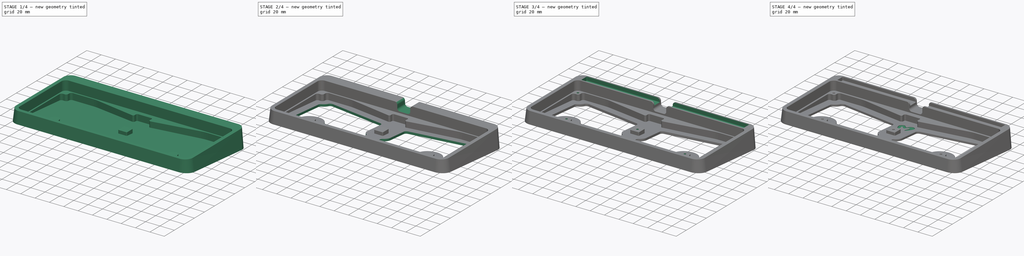
[diagram: build sequence overview — one tinted view per stage of 4, left to right]
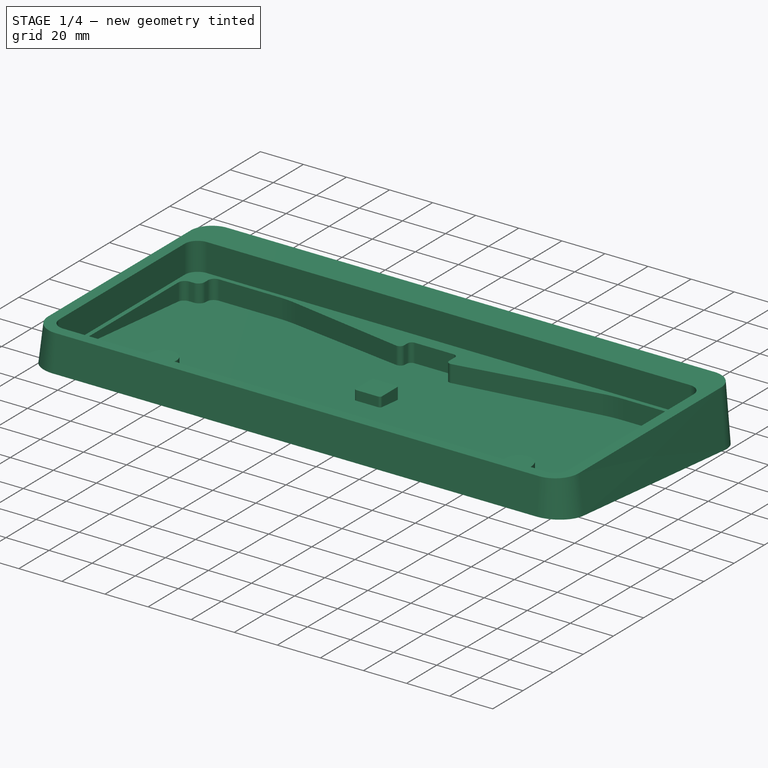
[diagram: stage 1 of 4 — iso view after this stage's code; geometry added in this stage tinted green]
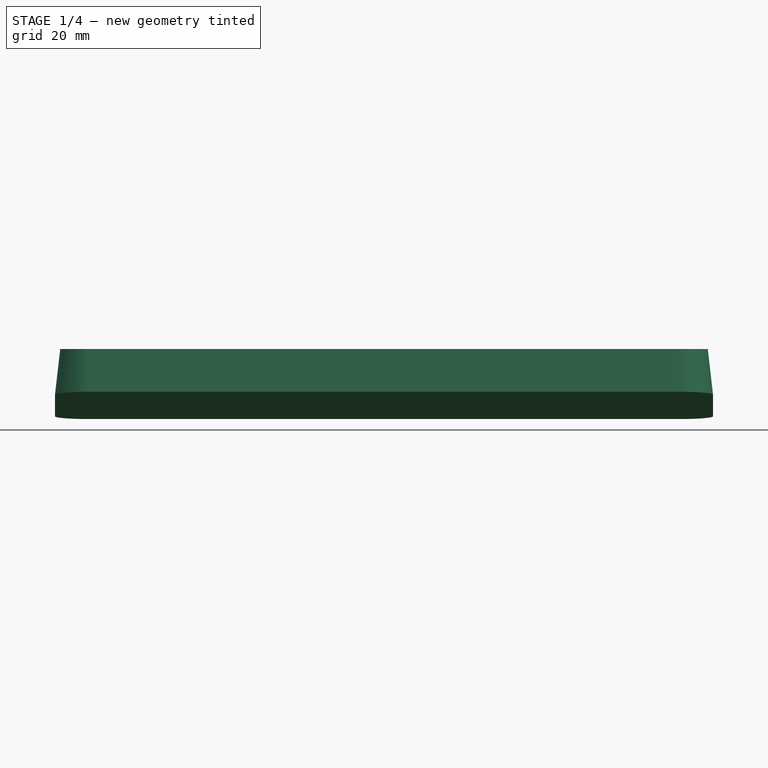
[diagram: stage 1 of 4 — front view after this stage's code; geometry added in this stage tinted green]
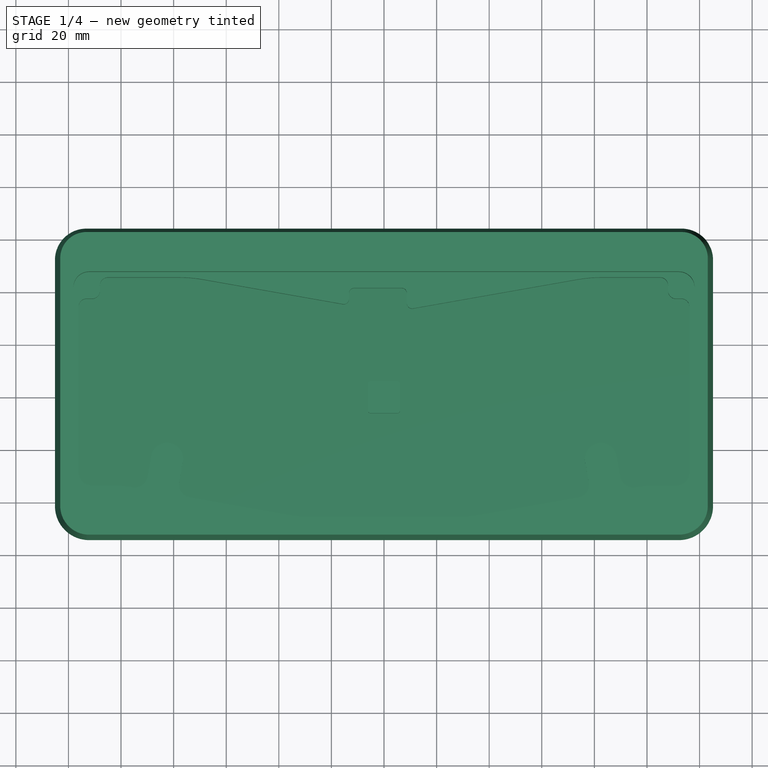
[diagram: stage 1 of 4 — top view after this stage's code; geometry added in this stage tinted green]
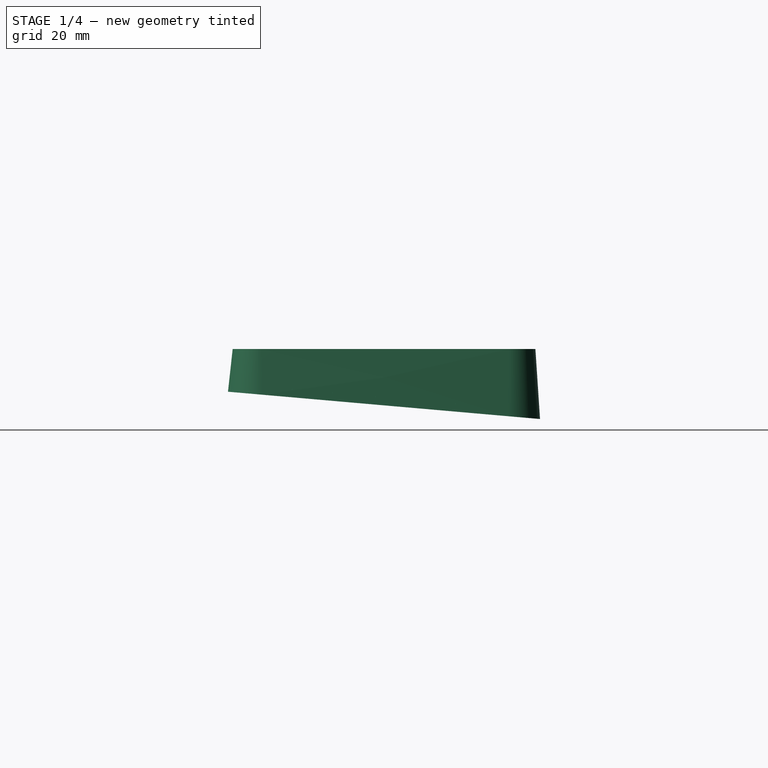
[diagram: stage 1 of 4 — right view after this stage's code; geometry added in this stage tinted green]
FCSTD DOCUMENT  (FreeCAD 0.20R)
Label: case.v2
License: All rights reserved
LicenseURL: http://en.wikipedia.org/wiki/All_rights_reserved
objects: Sketcher::SketchObject×9, PartDesign::Pocket×6, PartDesign::Fillet×3, PartDesign::AdditiveLoft×1, PartDesign::Hole×1, PartDesign::Chamfer×1, PartDesign::Body×1
note: 34 computed .brp shape members not serialized (recipe doc carries the construction recipe); baked Part::Feature solids carry a one-line shape summary decoded from their .brp

FEATURE [Sketcher::SketchObject] Sketch
  AttachmentOffset = pos=(0,0,0) rot=(-1,0,0;0.087266rad)
  FullyConstrained = false
  MapMode = 5
  Placement = pos=(0,0,0) rot=(-1,0,0;0.087266rad)
  Support = -> [XY_Plane]
  sketch-geometry (8):
    g0: LineSegment StartX=125.125 StartY=52.561 StartZ=0 EndX=125.125 EndY=-41.561 EndZ=0
    g1: ArcOfCircle CenterX=113.125 CenterY=52.561 CenterZ=0 NormalX=0 NormalY=0 NormalZ=1 AngleXU=0 Radius=12 StartAngle=0 EndAngle=1.5708
    g2: LineSegment StartX=-113.125 StartY=64.561 StartZ=0 EndX=113.125 EndY=64.561 EndZ=0
    g3: LineSegment StartX=-112.125 StartY=-54.561 StartZ=0 EndX=112.125 EndY=-54.561 EndZ=0
    g4: ArcOfCircle CenterX=112.125 CenterY=-41.561 CenterZ=0 NormalX=0 NormalY=0 NormalZ=1 AngleXU=0 Radius=13 StartAngle=4.71239 EndAngle=6.28319
    g5: ArcOfCircle CenterX=-113.125 CenterY=52.561 CenterZ=0 NormalX=0 NormalY=0 NormalZ=1 AngleXU=0 Radius=12 StartAngle=1.5708 EndAngle=3.14159
    g6: ArcOfCircle CenterX=-112.125 CenterY=-41.561 CenterZ=0 NormalX=0 NormalY=0 NormalZ=1 AngleXU=0 Radius=13 StartAngle=3.14159 EndAngle=4.71239
    g7: LineSegment StartX=-125.125 StartY=52.561 StartZ=0 EndX=-125.125 EndY=-41.561 EndZ=0
  constraints (8):
    c: Coincident(g6,g7)
    c: Coincident(g5,g7)
    c: Coincident(g2,g5)
    c: Coincident(g3,g6)
    c: Coincident(g3,g4)
    c: Coincident(g1,g2)
    c: Coincident(g0,g4)
    c: Coincident(g0,g1)
FEATURE [Sketcher::SketchObject] Sketch001
  AttachmentOffset = pos=(0,0,21) rot=(0,0,1;0rad)
  FullyConstrained = false
  MapMode = 5
  Placement = pos=(0,0,21) rot=(0,0,1;0rad)
  Support = -> [XY_Plane]
  sketch-geometry (8):
    g0: LineSegment StartX=-112.125 StartY=-52.561 StartZ=0 EndX=112.125 EndY=-52.561 EndZ=0
    g1: ArcOfCircle CenterX=112.125 CenterY=-41.561 CenterZ=0 NormalX=0 NormalY=0 NormalZ=1 AngleXU=0 Radius=11 StartAngle=4.71239 EndAngle=6.28319
    g2: ArcOfCircle CenterX=-112.125 CenterY=-41.561 CenterZ=0 NormalX=0 NormalY=0 NormalZ=1 AngleXU=0 Radius=11 StartAngle=3.14159 EndAngle=4.71239
    g3: LineSegment StartX=123.125 StartY=52.561 StartZ=0 EndX=123.125 EndY=-41.561 EndZ=0
    g4: ArcOfCircle CenterX=113.125 CenterY=52.561 CenterZ=0 NormalX=0 NormalY=0 NormalZ=1 AngleXU=0 Radius=10 StartAngle=0 EndAngle=1.5708
    g5: LineSegment StartX=-123.125 StartY=52.561 StartZ=0 EndX=-123.125 EndY=-41.561 EndZ=0
    g6: LineSegment StartX=-113.125 StartY=62.561 StartZ=0 EndX=113.125 EndY=62.561 EndZ=0
    g7: ArcOfCircle CenterX=-113.125 CenterY=52.561 CenterZ=0 NormalX=0 NormalY=0 NormalZ=1 AngleXU=0 Radius=10 StartAngle=1.5708 EndAngle=3.14159
  constraints (8):
    c: Coincident(g2,g5)
    c: Coincident(g5,g7)
    c: Coincident(g6,g7)
    c: Coincident(g0,g2)
    c: Coincident(g0,g1)
    c: Coincident(g4,g6)
    c: Coincident(g1,g3)
    c: Coincident(g3,g4)
FEATURE [PartDesign::AdditiveLoft] AdditiveLoft
  Closed = false
  Profile = -> Sketch001
  Ruled = true
  Sections = -> [Sketch]
FEATURE [Sketcher::SketchObject] Sketch002
  FullyConstrained = false
  MapMode = 5
  Placement = pos=(0,0,21) rot=(0,0,1;0rad)
  Support = -> [AdditiveLoft]
  sketch-geometry (8):
    g0: LineSegment StartX=-112.125 StartY=47.561 StartZ=0 EndX=112.125 EndY=47.561 EndZ=0
    g1: LineSegment StartX=-112.125 StartY=-47.561 StartZ=0 EndX=112.125 EndY=-47.561 EndZ=0
    g2: ArcOfCircle CenterX=112.125 CenterY=-41.561 CenterZ=0 NormalX=0 NormalY=0 NormalZ=1 AngleXU=0 Radius=6 StartAngle=4.71239 EndAngle=6.28319
    g3: ArcOfCircle CenterX=-112.125 CenterY=-41.561 CenterZ=0 NormalX=0 NormalY=0 NormalZ=1 AngleXU=0 Radius=6 StartAngle=3.14159 EndAngle=4.71239
    g4: LineSegment StartX=-118.125 StartY=41.561 StartZ=0 EndX=-118.125 EndY=-41.561 EndZ=0
    g5: ArcOfCircle CenterX=-112.125 CenterY=41.561 CenterZ=0 NormalX=0 NormalY=0 NormalZ=1 AngleXU=0 Radius=6 StartAngle=1.5708 EndAngle=3.14159
    g6: ArcOfCircle CenterX=112.125 CenterY=41.561 CenterZ=0 NormalX=0 NormalY=0 NormalZ=1 AngleXU=0 Radius=6 StartAngle=0 EndAngle=1.5708
    g7: LineSegment StartX=118.125 StartY=41.561 StartZ=0 EndX=118.125 EndY=-41.561 EndZ=0
  constraints (8):
    c: Coincident(g3,g4)
    c: Coincident(g4,g5)
    c: Coincident(g1,g3)
    c: Coincident(g0,g5)
    c: Coincident(g1,g2)
    c: Coincident(g0,g6)
    c: Coincident(g2,g7)
    c: Coincident(g6,g7)
FEATURE [PartDesign::Pocket] Pocket
  BaseFeature = -> AdditiveLoft
  Direction = (0,0,-1)
  Length = 13
  Length2 = 5
  Profile = -> Sketch002
  ReferenceAxis = -> Sketch002 [N_Axis]
  Type = 0
FEATURE [Sketcher::SketchObject] Sketch003
  FullyConstrained = false
  MapMode = 5
  Placement = pos=(0,0,8) rot=(0,0,1;0rad)
  Support = -> [Pocket]
  sketch-geometry (54):
    g0: ArcOfCircle CenterX=-111.125 CenterY=-28.579 CenterZ=0 NormalX=0 NormalY=0 NormalZ=1 AngleXU=0 Radius=5 StartAngle=3.14159 EndAngle=4.71239
    g1: LineSegment StartX=-111.125 StartY=-33.579 StartZ=0 EndX=-103.958 EndY=-33.579 EndZ=0
    g2: ArcOfCircle CenterX=-27.256 CenterY=4.43899 CenterZ=0 NormalX=0 NormalY=0 NormalZ=1 AngleXU=0 Radius=50 StartAngle=4.53786 EndAngle=4.71239
    g3: ArcOfCircle CenterX=111.125 CenterY=-28.579 CenterZ=0 NormalX=0 NormalY=0 NormalZ=1 AngleXU=0 Radius=5 StartAngle=4.71239 EndAngle=6.28319
    g4: LineSegment StartX=111.125 StartY=-33.579 StartZ=0 EndX=103.958 EndY=-33.579 EndZ=0
    g5: ArcOfCircle CenterX=27.256 CenterY=4.43899 CenterZ=0 NormalX=0 NormalY=0 NormalZ=1 AngleXU=0 Radius=50 StartAngle=4.71239 EndAngle=4.88692
    g6: LineSegment StartX=-27.256 StartY=-45.561 StartZ=0 EndX=27.256 EndY=-45.561 EndZ=0
    g7: ArcOfCircle CenterX=-11.3028 CenterY=39.541 CenterZ=0 NormalX=0 NormalY=0 NormalZ=1 AngleXU=0 Radius=2 StartAngle=1.5708 EndAngle=3.14159
    g8: LineSegment StartX=-11.3028 StartY=41.541 StartZ=0 EndX=6.69716 EndY=41.541 EndZ=0
    g9: ArcOfCircle CenterX=6.69716 CenterY=39.541 CenterZ=0 NormalX=0 NormalY=0 NormalZ=1 AngleXU=0 Radius=2 StartAngle=0 EndAngle=1.5708
    g10: LineSegment StartX=8.69716 StartY=35.7139 StartZ=0 EndX=8.69716 EndY=39.541 EndZ=0
    g11: ArcOfCircle CenterX=10.6972 CenterY=35.7139 CenterZ=0 NormalX=0 NormalY=0 NormalZ=1 AngleXU=0 Radius=2 StartAngle=3.14159 EndAngle=4.88692
    g12: LineSegment StartX=-13.3028 StartY=37.3635 StartZ=0 EndX=-13.3028 EndY=39.541 EndZ=0
    g13: ArcOfCircle CenterX=-15.3028 CenterY=37.3635 CenterZ=0 NormalX=0 NormalY=0 NormalZ=1 AngleXU=0 Radius=2 StartAngle=4.53786 EndAngle=6.28319
    g14: LineSegment StartX=-69.0025 StartY=44.8014 StartZ=0 EndX=-15.6501 EndY=35.3939 EndZ=0
    g15: ArcOfCircle CenterX=-77.6849 CenterY=-4.43899 CenterZ=0 NormalX=0 NormalY=0 NormalZ=1 AngleXU=0 Radius=50 StartAngle=1.39626 EndAngle=1.5708
    g16: LineSegment StartX=11.0445 StartY=33.7443 StartZ=0 EndX=73.7525 EndY=44.8014 EndZ=0
    g17: ArcOfCircle CenterX=82.4349 CenterY=-4.43899 CenterZ=0 NormalX=0 NormalY=0 NormalZ=1 AngleXU=0 Radius=50 StartAngle=1.5708 EndAngle=1.74533
    g18: ArcOfCircle CenterX=-82.5 CenterY=-23.459 CenterZ=0 NormalX=0 NormalY=0 NormalZ=1 AngleXU=0 Radius=6.1 StartAngle=6.10865 EndAngle=9.25025
    g19: ArcOfCircle CenterX=82.5 CenterY=-23.459 CenterZ=0 NormalX=0 NormalY=0 NormalZ=1 AngleXU=0 Radius=6.1 StartAngle=0.174533 EndAngle=3.31613
    g20: ArcOfCircle CenterX=5.1 CenterY=-5.1 CenterZ=0 NormalX=0 NormalY=0 NormalZ=1 AngleXU=0 Radius=1 StartAngle=4.71239 EndAngle=6.28319
    g21: LineSegment StartX=5.1 StartY=-6.1 StartZ=0 EndX=-5.1 EndY=-6.1 EndZ=0
    g22: ArcOfCircle CenterX=-5.1 CenterY=-5.1 CenterZ=0 NormalX=0 NormalY=0 NormalZ=1 AngleXU=0 Radius=1 StartAngle=3.14159 EndAngle=4.71239
    g23: LineSegment StartX=-6.1 StartY=5.1 StartZ=0 EndX=-6.1 EndY=-5.1 EndZ=0
    g24: ArcOfCircle CenterX=-5.1 CenterY=5.1 CenterZ=0 NormalX=0 NormalY=0 NormalZ=1 AngleXU=0 Radius=1 StartAngle=1.5708 EndAngle=3.14159
    g25: LineSegment StartX=5.1 StartY=6.1 StartZ=0 EndX=-5.1 EndY=6.1 EndZ=0
    g26: LineSegment StartX=6.1 StartY=5.1 StartZ=0 EndX=6.1 EndY=-5.1 EndZ=0
    g27: ArcOfCircle CenterX=5.1 CenterY=5.1 CenterZ=0 NormalX=0 NormalY=0 NormalZ=1 AngleXU=0 Radius=1 StartAngle=0 EndAngle=1.5708
    g28: ArcOfCircle CenterX=111.025 CenterY=40.461 CenterZ=0 NormalX=0 NormalY=0 NormalZ=1 AngleXU=0 Radius=3 StartAngle=3.14159 EndAngle=4.71239
    g29: LineSegment StartX=113.125 StartY=37.461 StartZ=0 EndX=111.025 EndY=37.461 EndZ=0
    g30: LineSegment StartX=116.125 StartY=34.461 StartZ=0 EndX=116.125 EndY=-28.579 EndZ=0
    g31: ArcOfCircle CenterX=113.125 CenterY=34.461 CenterZ=0 NormalX=0 NormalY=0 NormalZ=1 AngleXU=0 Radius=3 StartAngle=0 EndAngle=1.5708
    g32: LineSegment StartX=82.4349 StartY=45.561 StartZ=0 EndX=105.025 EndY=45.561 EndZ=0
    g33: LineSegment StartX=108.025 StartY=42.561 StartZ=0 EndX=108.025 EndY=40.461 EndZ=0
    g34: ArcOfCircle CenterX=105.025 CenterY=42.561 CenterZ=0 NormalX=0 NormalY=0 NormalZ=1 AngleXU=0 Radius=3 StartAngle=0 EndAngle=1.5708
    g35: LineSegment StartX=-116.125 StartY=34.461 StartZ=0 EndX=-116.125 EndY=-28.579 EndZ=0
    g36: ArcOfCircle CenterX=-113.125 CenterY=34.461 CenterZ=0 NormalX=0 NormalY=0 NormalZ=1 AngleXU=0 Radius=3 StartAngle=1.5708 EndAngle=3.14159
    g37: LineSegment StartX=-113.125 StartY=37.461 StartZ=0 EndX=-111.025 EndY=37.461 EndZ=0
    g38: ArcOfCircle CenterX=-111.025 CenterY=40.461 CenterZ=0 NormalX=0 NormalY=0 NormalZ=1 AngleXU=0 Radius=3 StartAngle=4.71239 EndAngle=6.28319
    g39: LineSegment StartX=-108.025 StartY=42.561 StartZ=0 EndX=-108.025 EndY=40.461 EndZ=0
    g40: LineSegment StartX=-105.025 StartY=45.561 StartZ=0 EndX=-77.6849 EndY=45.561 EndZ=0
    g41: ArcOfCircle CenterX=-105.025 CenterY=42.561 CenterZ=0 NormalX=0 NormalY=0 NormalZ=1 AngleXU=0 Radius=3 StartAngle=1.5708 EndAngle=3.14159
    g42: LineSegment StartX=-73.8144 StartY=-38.1228 StartZ=0 EndX=-35.9384 EndY=-44.8014 EndZ=0
    g43: LineSegment StartX=-77.8702 StartY=-32.3306 StartZ=0 EndX=-76.4927 EndY=-24.5182 EndZ=0
    g44: ArcOfCircle CenterX=-72.9462 CenterY=-33.1988 CenterZ=0 NormalX=0 NormalY=0 NormalZ=1 AngleXU=0 Radius=5 StartAngle=2.96706 EndAngle=4.53786
    g45: LineSegment StartX=-89.8851 StartY=-30.2135 StartZ=0 EndX=-88.5073 EndY=-22.3997 EndZ=0
    g46: ArcOfCircle CenterX=-103.958 CenterY=-83.579 CenterZ=0 NormalX=0 NormalY=0 NormalZ=1 AngleXU=0 Radius=50 StartAngle=1.40367 EndAngle=1.5708
    g47: ArcOfCircle CenterX=-94.8092 CenterY=-29.3453 CenterZ=0 NormalX=0 NormalY=0 NormalZ=1 AngleXU=0 Radius=5 StartAngle=4.54526 EndAngle=6.10865
    g48: LineSegment StartX=89.8851 StartY=-30.2135 StartZ=0 EndX=88.5073 EndY=-22.3997 EndZ=0
    g49: ArcOfCircle CenterX=103.958 CenterY=-83.579 CenterZ=0 NormalX=0 NormalY=0 NormalZ=1 AngleXU=0 Radius=50 StartAngle=1.5708 EndAngle=1.73792
    g50: ArcOfCircle CenterX=94.8092 CenterY=-29.3453 CenterZ=0 NormalX=0 NormalY=0 NormalZ=1 AngleXU=0 Radius=5 StartAngle=3.31613 EndAngle=4.87951
    g51: LineSegment StartX=73.8144 StartY=-38.1228 StartZ=0 EndX=35.9384 EndY=-44.8014 EndZ=0
    g52: LineSegment StartX=77.8702 StartY=-32.3306 StartZ=0 EndX=76.4927 EndY=-24.5182 EndZ=0
    g53: ArcOfCircle CenterX=72.9462 CenterY=-33.1988 CenterZ=0 NormalX=0 NormalY=0 NormalZ=1 AngleXU=0 Radius=5 StartAngle=4.88692 EndAngle=6.45772
  constraints (54):
    c: Coincident(g0,g35)
    c: Coincident(g35,g36)
    c: Coincident(g36,g37)
    c: Coincident(g0,g1)
    c: Coincident(g37,g38)
    c: Coincident(g38,g39)
    c: Coincident(g39,g41)
    c: Coincident(g40,g41)
    c: Coincident(g1,g46)
    c: Coincident(g46,g47)
    c: Coincident(g45,g47)
    c: Coincident(g18,g45)
    c: Coincident(g43,g44)
    c: Coincident(g15,g40)
    c: Coincident(g18,g43)
    c: Coincident(g42,g44)
    c: Coincident(g14,g15)
    c: Coincident(g2,g42)
    c: Coincident(g2,g6)
    c: Coincident(g13,g14)
    c: Coincident(g12,g13)
    c: Coincident(g7,g12)
    c: Coincident(g7,g8)
    c: Coincident(g22,g23)
    c: Coincident(g23,g24)
    c: Coincident(g21,g22)
    c: Coincident(g24,g25)
    c: Coincident(g20,g21)
    c: Coincident(g25,g27)
    c: Coincident(g20,g26)
    c: Coincident(g26,g27)
    c: Coincident(g8,g9)
    c: Coincident(g10,g11)
    c: Coincident(g9,g10)
    c: Coincident(g11,g16)
    c: Coincident(g5,g6)
    c: Coincident(g5,g51)
    c: Coincident(g16,g17)
    c: Coincident(g51,g53)
    c: Coincident(g19,g52)
    c: Coincident(g52,g53)
    c: Coincident(g17,g32)
    c: Coincident(g19,g48)
    c: Coincident(g48,g50)
    c: Coincident(g49,g50)
    c: Coincident(g4,g49)
    c: Coincident(g32,g34)
    c: Coincident(g28,g33)
    c: Coincident(g33,g34)
    c: Coincident(g28,g29)
    c: Coincident(g3,g4)
    c: Coincident(g29,g31)
    c: Coincident(g3,g30)
    c: Coincident(g30,g31)
FEATURE [PartDesign::Pocket] Pocket001
  BaseFeature = -> Pocket
  Direction = (0,0,-1)
  Length = 0
  Length2 = 5
  Offset = -3
  Profile = -> Sketch003
  ReferenceAxis = -> Sketch003 [N_Axis]
  Type = 3
  UpToFace = -> Pocket [Face18]
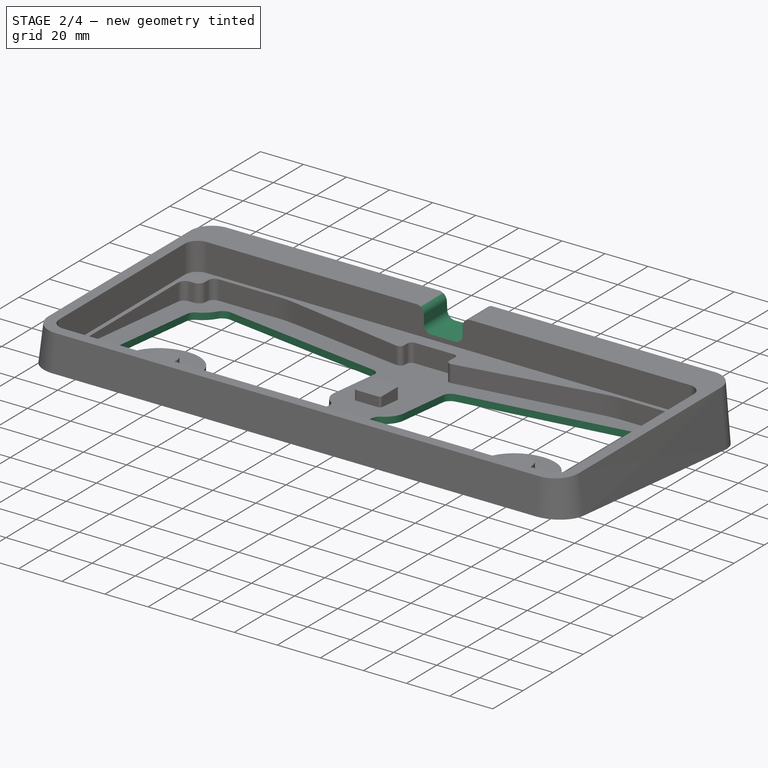
[diagram: stage 2 of 4 — iso view after this stage's code; geometry added in this stage tinted green]
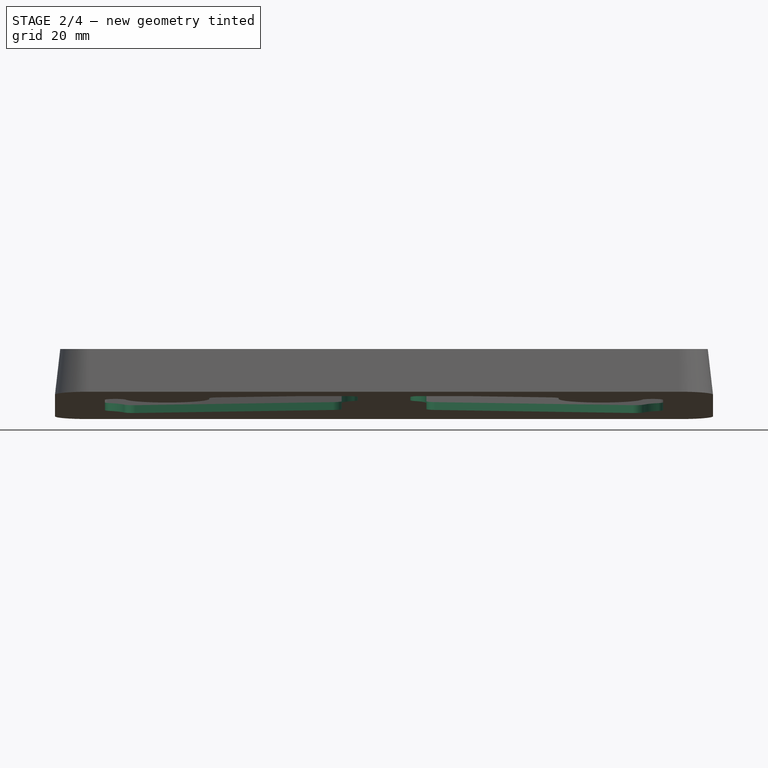
[diagram: stage 2 of 4 — front view after this stage's code; geometry added in this stage tinted green]
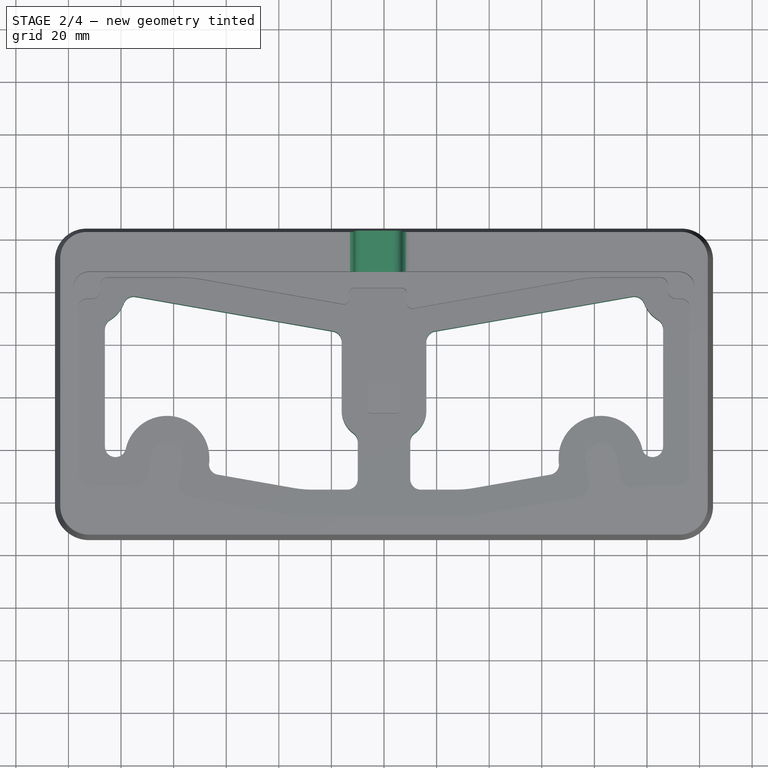
[diagram: stage 2 of 4 — top view after this stage's code; geometry added in this stage tinted green]
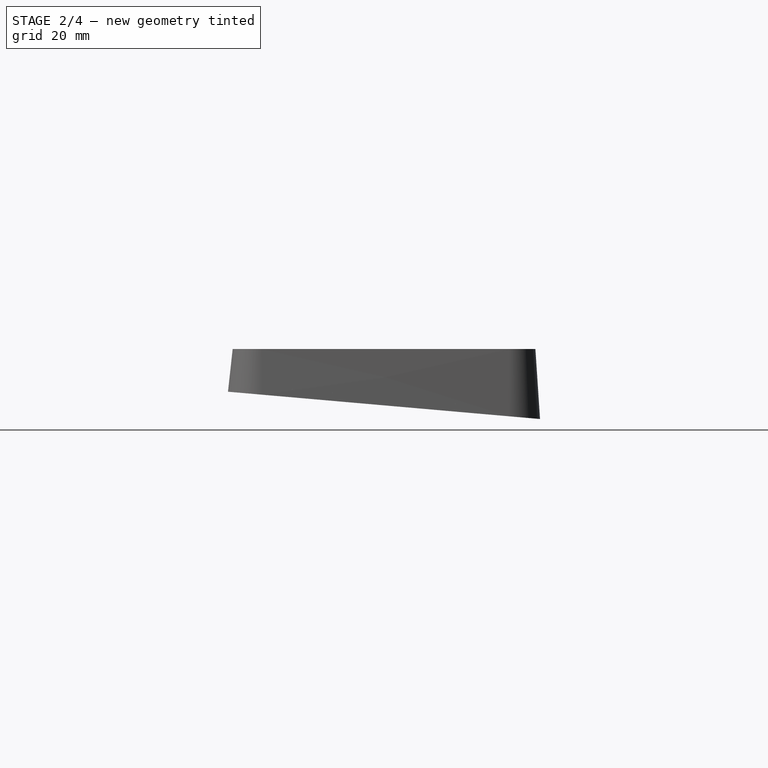
[diagram: stage 2 of 4 — right view after this stage's code; geometry added in this stage tinted green]
FEATURE [Sketcher::SketchObject] Sketch004
  FullyConstrained = false
  MapMode = 5
  Placement = pos=(0,0,21) rot=(0,0,1;0rad)
  Support = -> [AdditiveLoft]
  sketch-geometry (4):
    g0: LineSegment StartX=-11.3028 StartY=39.541 StartZ=0 EndX=6.69716 EndY=39.541 EndZ=0
    g1: LineSegment StartX=6.69716 StartY=39.541 StartZ=0 EndX=6.69716 EndY=80 EndZ=0
    g2: LineSegment StartX=-11.3028 StartY=39.541 StartZ=0 EndX=-11.3028 EndY=80 EndZ=0
    g3: LineSegment StartX=-11.3028 StartY=80 StartZ=0 EndX=6.69716 EndY=80 EndZ=0
  constraints (4):
    c: Coincident(g0,g2)
    c: Coincident(g2,g3)
    c: Coincident(g0,g1)
    c: Coincident(g1,g3)
FEATURE [PartDesign::Pocket] Pocket002
  BaseFeature = -> Pocket001
  Direction = (0,0,-1)
  Length = 0
  Length2 = 5
  Offset = -2
  Profile = -> Sketch004
  ReferenceAxis = -> Sketch004 [N_Axis]
  Type = 3
  UpToFace = -> Pocket001 [Face19]
FEATURE [PartDesign::Fillet] Fillet
  Base = -> Pocket002 [Edge5,Edge15,Edge33,Edge53]
  BaseFeature = -> Pocket002
  Radius = 3.5
  SupportTransform = false
  UseAllEdges = false
FEATURE [Sketcher::SketchObject] Sketch005
  FullyConstrained = false
  MapMode = 5
  Placement = pos=(0,0.260472,2.97721) rot=(-1,0,0;0.087266rad)
  Support = -> [Fillet]
  sketch-geometry (34):
    g0: ArcOfCircle CenterX=27.256 CenterY=4.43899 CenterZ=0 NormalX=0 NormalY=0 NormalZ=1 AngleXU=0 Radius=40 StartAngle=4.71239 EndAngle=4.88692
    g1: LineSegment StartX=63.2426 StartY=-29.8327 StartZ=0 EndX=34.202 EndY=-34.9533 EndZ=0
    g2: ArcOfCircle CenterX=62.548 CenterY=-25.8934 CenterZ=0 NormalX=0 NormalY=0 NormalZ=1 AngleXU=0 Radius=4 StartAngle=4.88692 EndAngle=6.4046
    g3: ArcOfCircle CenterX=82.5 CenterY=-23.459 CenterZ=0 NormalX=0 NormalY=0 NormalZ=1 AngleXU=0 Radius=16.1 StartAngle=0.217833 EndAngle=3.26301
    g4: ArcOfCircle CenterX=102.125 CenterY=-19.1151 CenterZ=0 NormalX=0 NormalY=0 NormalZ=1 AngleXU=0 Radius=4 StartAngle=3.35943 EndAngle=6.28319
    g5: LineSegment StartX=106.125 StartY=-19.1151 StartZ=0 EndX=106.125 EndY=25.9769 EndZ=0
    g6: ArcOfCircle CenterX=102.125 CenterY=25.9769 CenterZ=0 NormalX=0 NormalY=0 NormalZ=1 AngleXU=0 Radius=4 StartAngle=0 EndAngle=1.01981
    g7: ArcOfCircle CenterX=111.025 CenterY=40.461 CenterZ=0 NormalX=0 NormalY=0 NormalZ=1 AngleXU=0 Radius=13 StartAngle=3.50868 EndAngle=4.1614
    g8: ArcOfCircle CenterX=95.1576 CenterY=34.3597 CenterZ=0 NormalX=0 NormalY=0 NormalZ=1 AngleXU=0 Radius=4 StartAngle=0.367089 EndAngle=1.74533
    g9: LineSegment StartX=19.4054 StartY=25.0643 StartZ=0 EndX=94.463 EndY=38.2989 EndZ=0
    g10: ArcOfCircle CenterX=20.1 CenterY=21.125 CenterZ=0 NormalX=0 NormalY=0 NormalZ=1 AngleXU=0 Radius=4 StartAngle=1.74533 EndAngle=3.14159
    g11: LineSegment StartX=16.1 StartY=21.125 StartZ=0 EndX=16.1 EndY=-5.21799 EndZ=0
    g12: ArcOfCircle CenterX=14 CenterY=-17.1744 CenterZ=0 NormalX=0 NormalY=0 NormalZ=1 AngleXU=0 Radius=4 StartAngle=2.20599 EndAngle=3.14159
    g13: LineSegment StartX=14 StartY=-35.561 StartZ=0 EndX=27.256 EndY=-35.561 EndZ=0
    g14: LineSegment StartX=10 StartY=-31.561 StartZ=0 EndX=10 EndY=-17.1744 EndZ=0
    g15: ArcOfCircle CenterX=14 CenterY=-31.561 CenterZ=0 NormalX=0 NormalY=0 NormalZ=1 AngleXU=0 Radius=4 StartAngle=3.14159 EndAngle=4.71239
    g16: ArcOfCircle CenterX=-27.256 CenterY=4.43899 CenterZ=0 NormalX=0 NormalY=0 NormalZ=1 AngleXU=0 Radius=40 StartAngle=4.53786 EndAngle=4.71239
    g17: LineSegment StartX=-63.2426 StartY=-29.8327 StartZ=0 EndX=-34.202 EndY=-34.9533 EndZ=0
    g18: ArcOfCircle CenterX=-62.548 CenterY=-25.8934 CenterZ=0 NormalX=0 NormalY=0 NormalZ=1 AngleXU=0 Radius=4 StartAngle=3.02018 EndAngle=4.53786
    g19: ArcOfCircle CenterX=-82.5 CenterY=-23.459 CenterZ=0 NormalX=0 NormalY=0 NormalZ=1 AngleXU=0 Radius=16.1 StartAngle=6.16177 EndAngle=9.20695
    g20: ArcOfCircle CenterX=-102.125 CenterY=-19.1151 CenterZ=0 NormalX=0 NormalY=0 NormalZ=1 AngleXU=0 Radius=4 StartAngle=3.14159 EndAngle=6.06535
    g21: LineSegment StartX=-106.125 StartY=-19.1151 StartZ=0 EndX=-106.125 EndY=25.9769 EndZ=0
    g22: ArcOfCircle CenterX=-102.125 CenterY=25.9769 CenterZ=0 NormalX=0 NormalY=0 NormalZ=1 AngleXU=0 Radius=4 StartAngle=2.12178 EndAngle=3.14159
    g23: ArcOfCircle CenterX=-111.025 CenterY=40.461 CenterZ=0 NormalX=0 NormalY=0 NormalZ=1 AngleXU=0 Radius=13 StartAngle=5.26338 EndAngle=5.9161
    g24: ArcOfCircle CenterX=-95.1576 CenterY=34.3597 CenterZ=0 NormalX=0 NormalY=0 NormalZ=1 AngleXU=0 Radius=4 StartAngle=1.39626 EndAngle=2.7745
    g25: LineSegment StartX=-19.4054 StartY=25.0643 StartZ=0 EndX=-94.463 EndY=38.2989 EndZ=0
    g26: ArcOfCircle CenterX=-20.1 CenterY=21.125 CenterZ=0 NormalX=0 NormalY=0 NormalZ=1 AngleXU=0 Radius=4 StartAngle=0 EndAngle=1.39626
    g27: LineSegment StartX=-16.1 StartY=21.125 StartZ=0 EndX=-16.1 EndY=-5.21799 EndZ=0
    g28: ArcOfCircle CenterX=-14 CenterY=-17.1744 CenterZ=0 NormalX=0 NormalY=0 NormalZ=1 AngleXU=0 Radius=4 StartAngle=0 EndAngle=0.935603
    g29: LineSegment StartX=-14 StartY=-35.561 StartZ=0 EndX=-27.256 EndY=-35.561 EndZ=0
    g30: LineSegment StartX=-10 StartY=-31.561 StartZ=0 EndX=-10 EndY=-17.1744 EndZ=0
    g31: ArcOfCircle CenterX=-14 CenterY=-31.561 CenterZ=0 NormalX=0 NormalY=0 NormalZ=1 AngleXU=0 Radius=4 StartAngle=4.71239 EndAngle=6.28319
    g32: ArcOfCircle CenterX=-5.21677 CenterY=-5.15899 CenterZ=0 NormalX=0 NormalY=0 NormalZ=1 AngleXU=0 Radius=10.8834 StartAngle=3.14701 EndAngle=4.08262
    g33: ArcOfCircle CenterX=5.21677 CenterY=-5.15899 CenterZ=0 NormalX=0 NormalY=0 NormalZ=1 AngleXU=0 Radius=10.8834 StartAngle=5.34216 EndAngle=6.27776
  constraints (34):
    c: Coincident(g20,g21)
    c: Coincident(g21,g22)
    c: Coincident(g22,g23)
    c: Coincident(g23,g24)
    c: Coincident(g19,g20)
    c: Coincident(g24,g25)
    c: Coincident(g18,g19)
    c: Coincident(g17,g18)
    c: Coincident(g16,g17)
    c: Coincident(g16,g29)
    c: Coincident(g25,g26)
    c: Coincident(g27,g32)
    c: Coincident(g26,g27)
    c: Coincident(g29,g31)
    c: Coincident(g28,g32)
    c: Coincident(g30,g31)
    c: Coincident(g28,g30)
    c: Coincident(g14,g15)
    c: Coincident(g12,g14)
    c: Coincident(g12,g33)
    c: Coincident(g13,g15)
    c: Coincident(g11,g33)
    c: Coincident(g10,g11)
    c: Coincident(g9,g10)
    c: Coincident(g0,g13)
    c: Coincident(g0,g1)
    c: Coincident(g1,g2)
    c: Coincident(g2,g3)
    c: Coincident(g8,g9)
    c: Coincident(g3,g4)
    c: Coincident(g7,g8)
    c: Coincident(g6,g7)
    c: Coincident(g4,g5)
    c: Coincident(g5,g6)
FEATURE [PartDesign::Pocket] Pocket003
  BaseFeature = -> Fillet
  Direction = (0,-0.0871557,-0.996195)
  Length = 5
  Length2 = 5
  Profile = -> Sketch005
  ReferenceAxis = -> Sketch005 [N_Axis]
  Type = 1
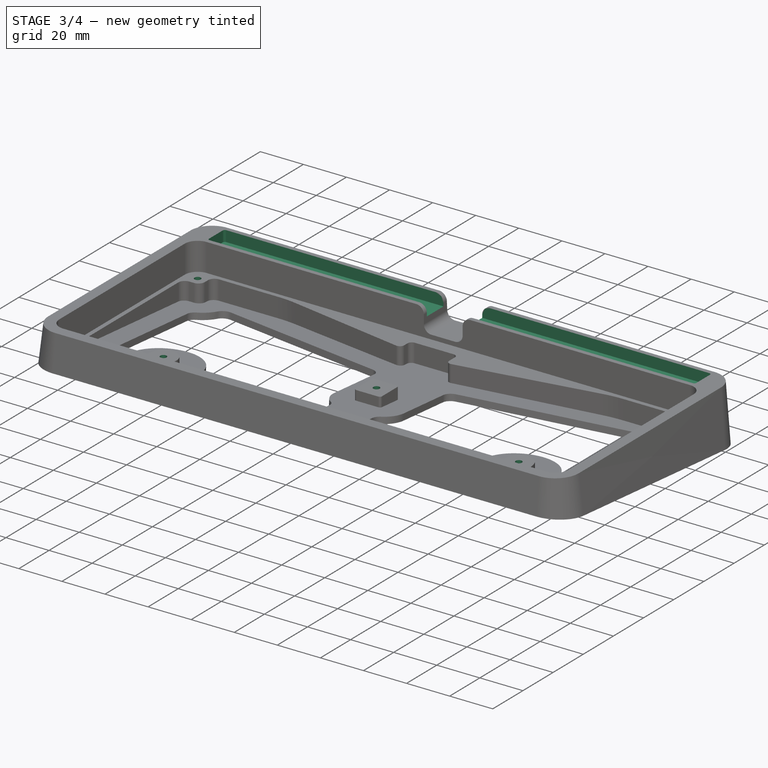
[diagram: stage 3 of 4 — iso view after this stage's code; geometry added in this stage tinted green]
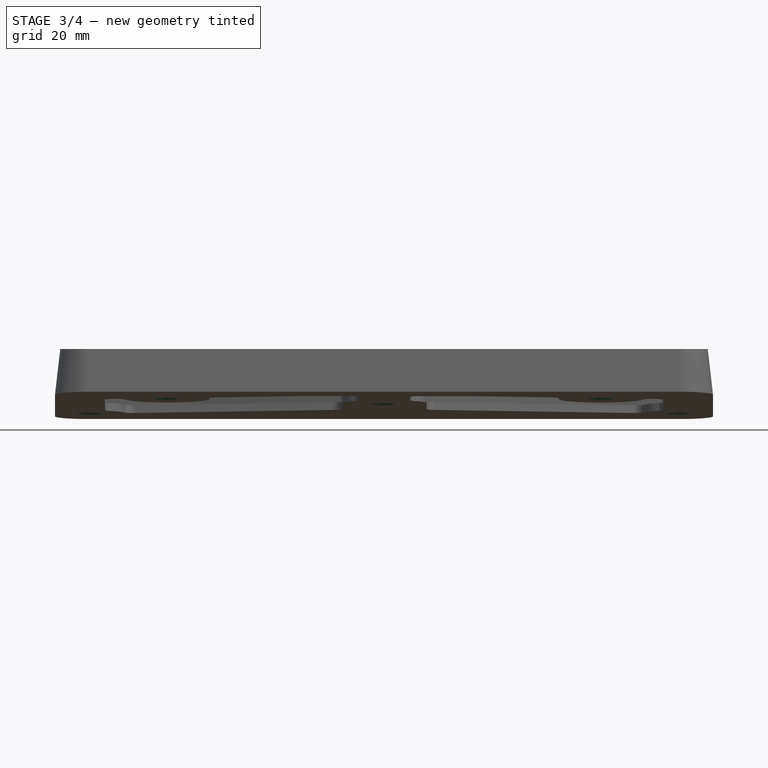
[diagram: stage 3 of 4 — front view after this stage's code; geometry added in this stage tinted green]
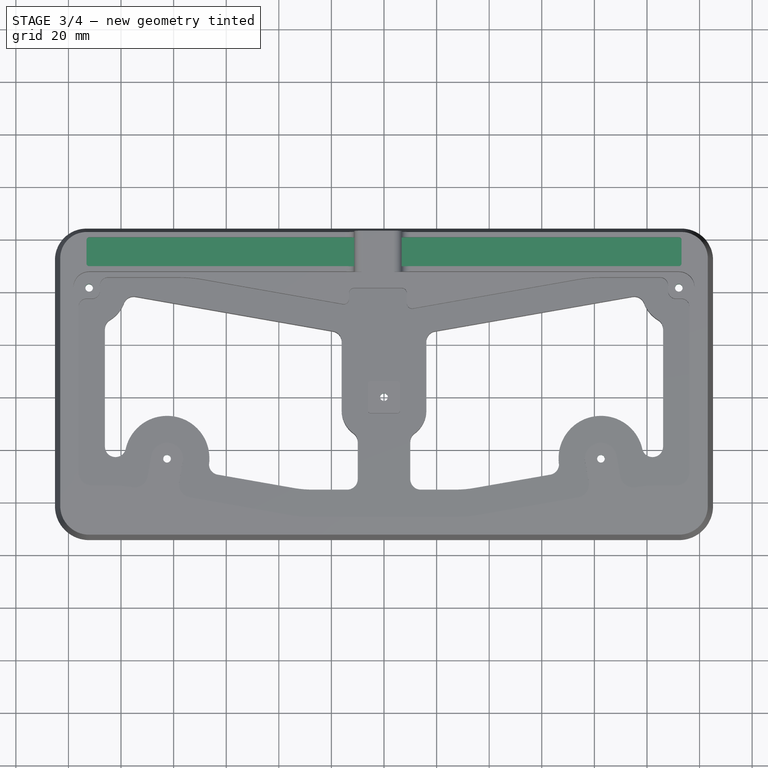
[diagram: stage 3 of 4 — top view after this stage's code; geometry added in this stage tinted green]
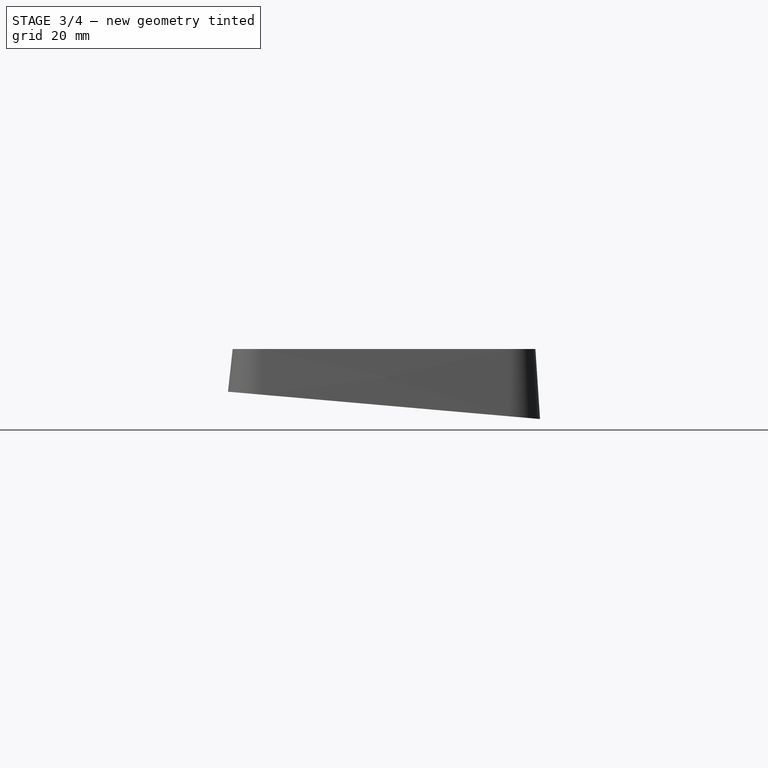
[diagram: stage 3 of 4 — right view after this stage's code; geometry added in this stage tinted green]
FEATURE [Sketcher::SketchObject] Sketch006
  FullyConstrained = false
  MapMode = 5
  Placement = pos=(0,0,8) rot=(0,0,1;0rad)
  Support = -> [Pocket]
  sketch-geometry (5):
    g0: Circle CenterX=-82.5 CenterY=-23.459 CenterZ=0 NormalX=0 NormalY=0 NormalZ=-1 AngleXU=0 Radius=1.1
    g1: Circle CenterX=82.5 CenterY=-23.459 CenterZ=0 NormalX=0 NormalY=0 NormalZ=-1 AngleXU=0 Radius=1.1
    g2: Circle CenterX=0 CenterY=0 CenterZ=0 NormalX=0 NormalY=0 NormalZ=-1 AngleXU=0 Radius=1.1
    g3: Circle CenterX=112.125 CenterY=41.561 CenterZ=0 NormalX=0 NormalY=0 NormalZ=-1 AngleXU=0 Radius=1.1
    g4: Circle CenterX=-112.125 CenterY=41.561 CenterZ=0 NormalX=0 NormalY=0 NormalZ=-1 AngleXU=0 Radius=1.1
FEATURE [PartDesign::Hole] Hole
  BaseFeature = -> Pocket003
  CustomThreadClearance = 0
  Depth = 562.871
  DepthType = 1
  Diameter = 2.9
  DrillForDepth = false
  DrillPoint = 1
  DrillPointAngle = 118
  HoleCutCountersinkAngle = 90
  HoleCutCustomValues = false
  HoleCutDepth = 0
  HoleCutDiameter = 6.1
  HoleCutType = 0
  ModelThread = false
  Profile = -> Sketch006
  Tapered = false
  TaperedAngle = 90
  ThreadClass = 0
  ThreadDepth = 562.871
  ThreadDepthType = 0
  ThreadDirection = 0
  ThreadFit = 0
  ThreadSize = 8
  ThreadType = 1
  Threaded = false
  UseCustomThreadClearance = false
FEATURE [PartDesign::Chamfer] Chamfer
  Angle = 45
  Base = -> Hole [Edge70,Edge88,Edge90,Edge108,Edge89]
  BaseFeature = -> Hole
  ChamferType = 0
  FlipDirection = false
  Size = 3
  Size2 = 1
  SupportTransform = false
  UseAllEdges = false
FEATURE [Sketcher::SketchObject] Sketch007
  FullyConstrained = false
  MapMode = 5
  Placement = pos=(0,0,21) rot=(0,0,1;0rad)
  Support = -> [AdditiveLoft]
  sketch-geometry (8):
    g0: ArcOfCircle CenterX=112.125 CenterY=59.561 CenterZ=0 NormalX=0 NormalY=0 NormalZ=1 AngleXU=0 Radius=1 StartAngle=0 EndAngle=1.5708
    g1: LineSegment StartX=113.125 StartY=50.561 StartZ=0 EndX=113.125 EndY=59.561 EndZ=0
    g2: ArcOfCircle CenterX=112.125 CenterY=50.561 CenterZ=0 NormalX=0 NormalY=0 NormalZ=1 AngleXU=0 Radius=1 StartAngle=4.71239 EndAngle=6.28319
    g3: ArcOfCircle CenterX=-112.125 CenterY=50.561 CenterZ=0 NormalX=0 NormalY=0 NormalZ=1 AngleXU=0 Radius=1 StartAngle=3.14159 EndAngle=4.71239
    g4: LineSegment StartX=-113.125 StartY=50.561 StartZ=0 EndX=-113.125 EndY=59.561 EndZ=0
    g5: ArcOfCircle CenterX=-112.125 CenterY=59.561 CenterZ=0 NormalX=0 NormalY=0 NormalZ=1 AngleXU=0 Radius=1 StartAngle=1.5708 EndAngle=3.14159
    g6: LineSegment StartX=-112.125 StartY=60.561 StartZ=0 EndX=112.125 EndY=60.561 EndZ=0
    g7: LineSegment StartX=-112.125 StartY=49.561 StartZ=0 EndX=112.125 EndY=49.561 EndZ=0
  constraints (9):
    c: Coincident(g3,g4)
    c: Coincident(g4,g5)
    c: Coincident(g3,g7)
    c: Coincident(g5,g6)
    c: Coincident(g1,g2)
    c: Coincident(g0,g1)
    c: Coincident(g6,g0)
    c: Coincident(g7,g2)
    c: Distance(g2,g6) = 11
FEATURE [PartDesign::Pocket] Pocket004
  BaseFeature = -> Chamfer
  Direction = (0,0,-1)
  Length = 5
  Length2 = 5
  Offset = -9
  Profile = -> Sketch007
  ReferenceAxis = -> Sketch007 [N_Axis]
  Type = 0
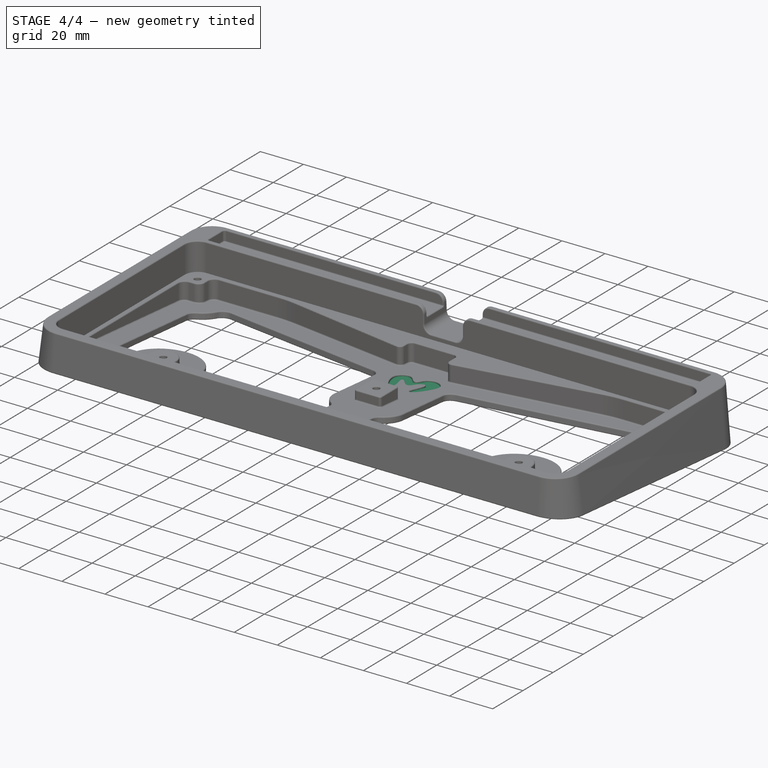
[diagram: stage 4 of 4 — iso view after this stage's code; geometry added in this stage tinted green]
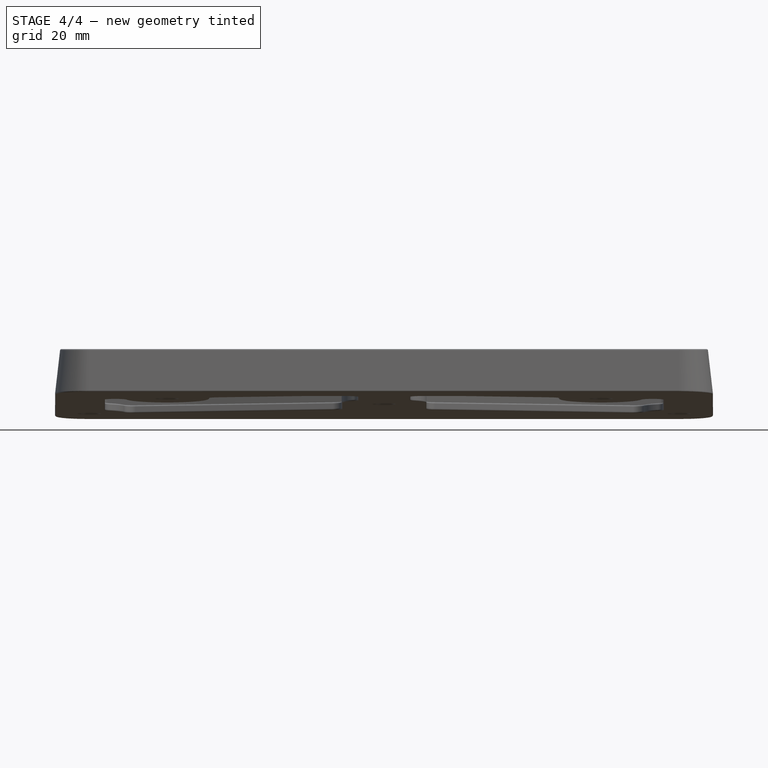
[diagram: stage 4 of 4 — front view after this stage's code; geometry added in this stage tinted green]
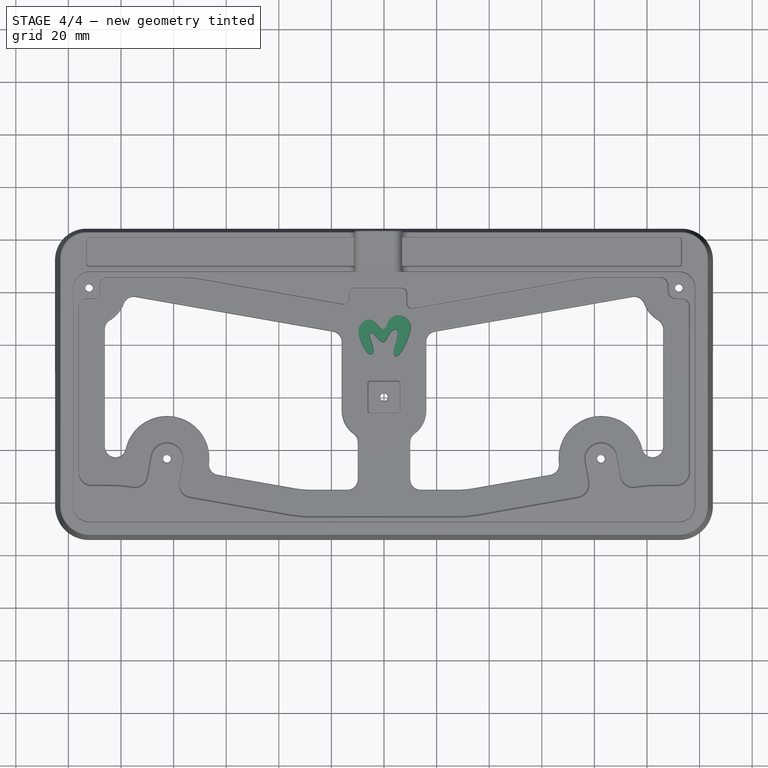
[diagram: stage 4 of 4 — top view after this stage's code; geometry added in this stage tinted green]
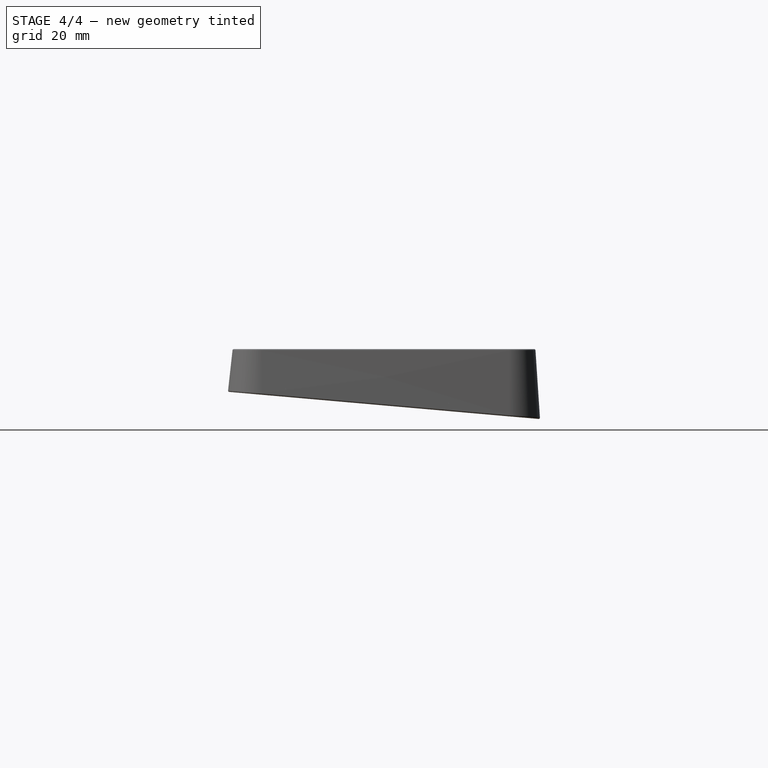
[diagram: stage 4 of 4 — right view after this stage's code; geometry added in this stage tinted green]
FEATURE [PartDesign::Fillet] Fillet001
  Base = -> Pocket004 [Face84,Face50,Face85,Face58,Edge279,Face140,Edge251,Edge257,Edge255,Edge151,Face1]
  BaseFeature = -> Pocket004
  Radius = 0.5
  SupportTransform = false
  UseAllEdges = false
FEATURE [Sketcher::SketchObject] Sketch008
  FullyConstrained = false
  MapMode = 5
  Placement = pos=(0,0.260472,2.97721) rot=(-1,0,0;0.087266rad)
  Support = -> [Fillet001]
  sketch-geometry (48):
    g0-g22: Circle x23 (B-spline internal-alignment scaffolding for g23; pole/knot coordinates omitted)
    g23: BSplineCurve PolesCount=23 KnotsCount=24 Degree=3 IsPeriodic=1
    g24-g47: GeomPoint x24 (B-spline internal-alignment scaffolding for g23; pole/knot coordinates omitted)
  constraints (4):
    c: Weight(g0) = 1
    c: Equal(g0, g1-g22) x22
    c: InternalAlignment(g0-g22 -> g23) x23
    c: InternalAlignment(g24-g47 -> g23) x24
FEATURE [PartDesign::Pocket] Pocket005
  BaseFeature = -> Fillet001
  Direction = (0,-0.0871557,-0.996195)
  Length = 1
  Length2 = 5
  Profile = -> Sketch008
  ReferenceAxis = -> Sketch008 [N_Axis]
  Type = 0
FEATURE [PartDesign::Fillet] Fillet002
  Base = -> Pocket005 [Edge450,Face380]
  BaseFeature = -> Pocket005
  Radius = 0.325
  SupportTransform = false
  UseAllEdges = false
FEATURE [PartDesign::Body] Body  label="Corps"
  Group = -> [Sketch002,Sketch,Sketch001,AdditiveLoft,Pocket,Sketch003,Pocket001,Sketch004,Pocket002,Fillet,Sketch005,Pocket003,Sketch006,Hole,Chamfer,Sketch007,Pocket004,Fillet001,Sketch008,Pocket005,Fillet002]
  Origin = -> Origin
  Placement = pos=(0,0,0) rot=(1,0,0;0.087266rad)
  Tip = -> Fillet002
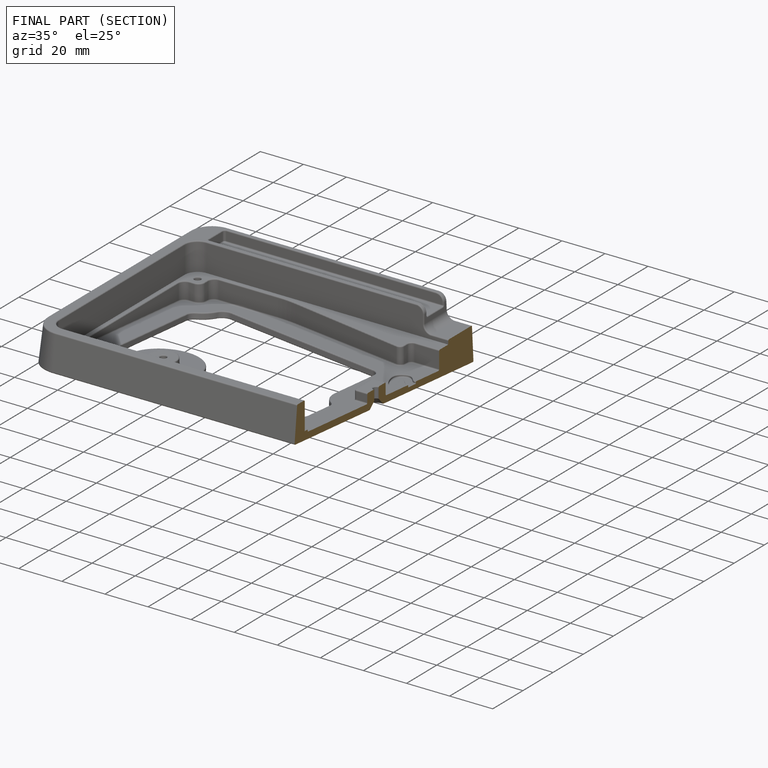
[diagram: finished part — half-section view (interior)]
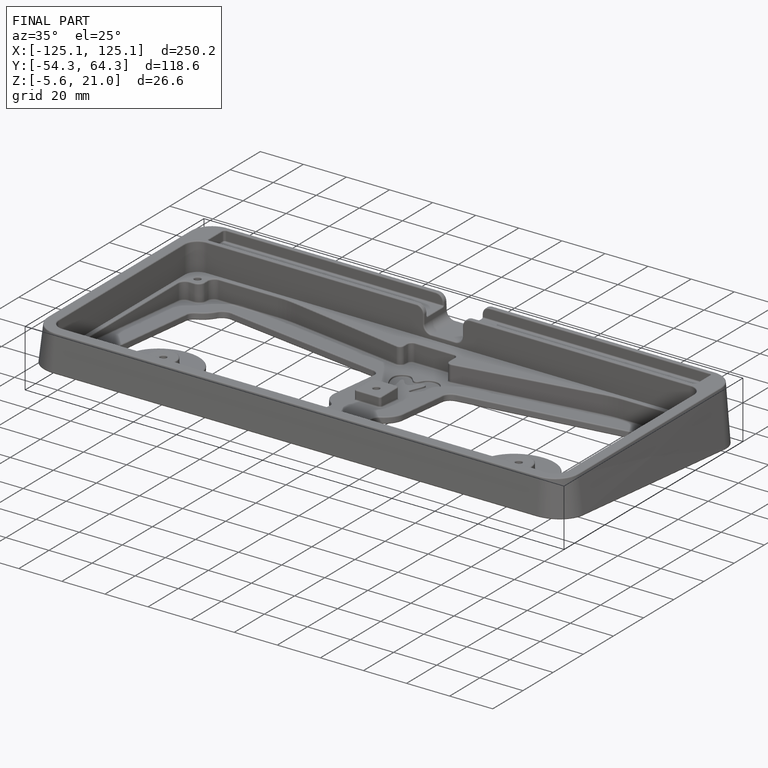
[diagram: finished part — iso view with bounding-box wireframe]
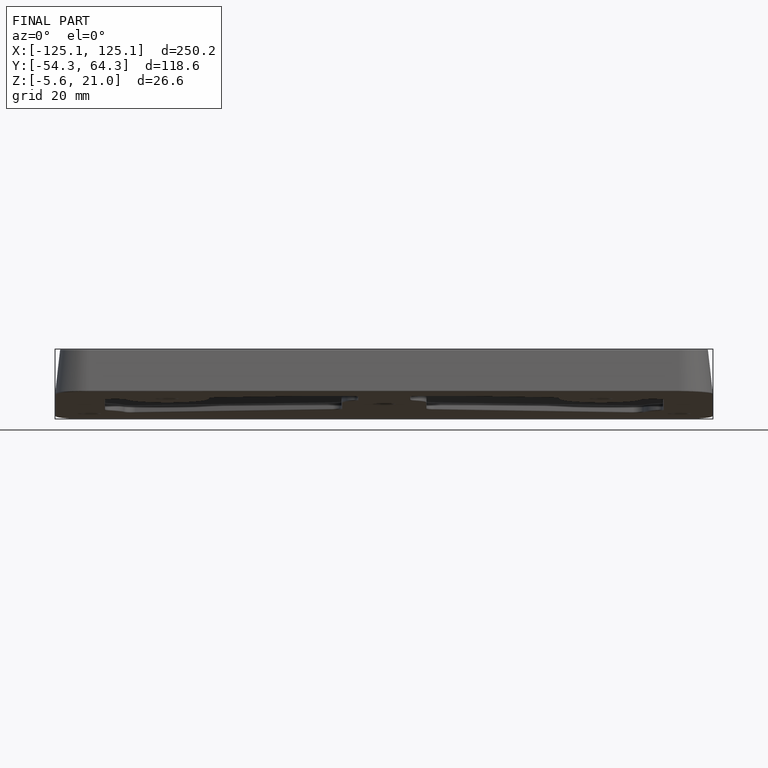
[diagram: finished part — front view with bounding-box wireframe]
